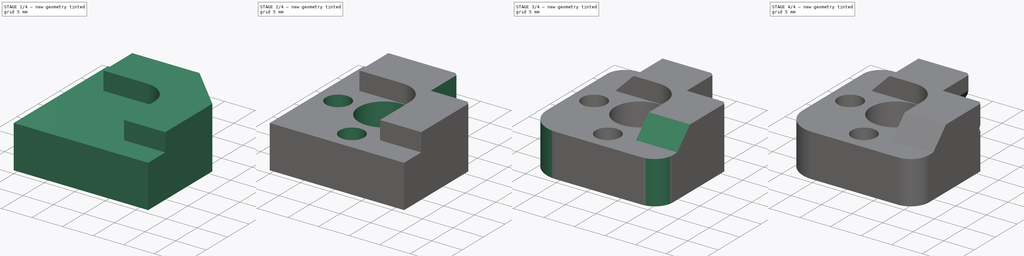
[diagram: build sequence overview — one tinted view per stage of 4, left to right]
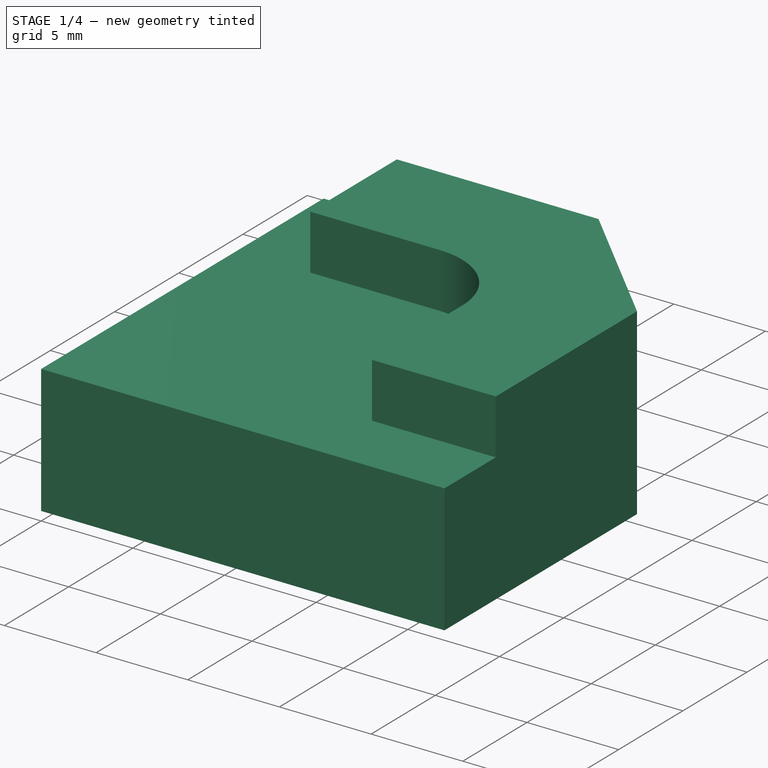
[diagram: stage 1 of 4 — iso view after this stage's code; geometry added in this stage tinted green]
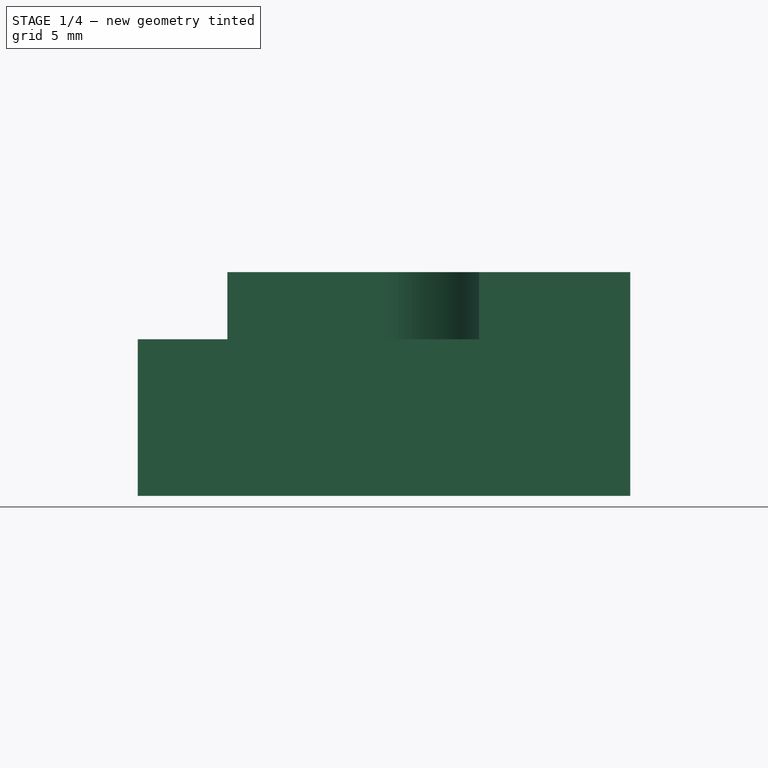
[diagram: stage 1 of 4 — front view after this stage's code; geometry added in this stage tinted green]
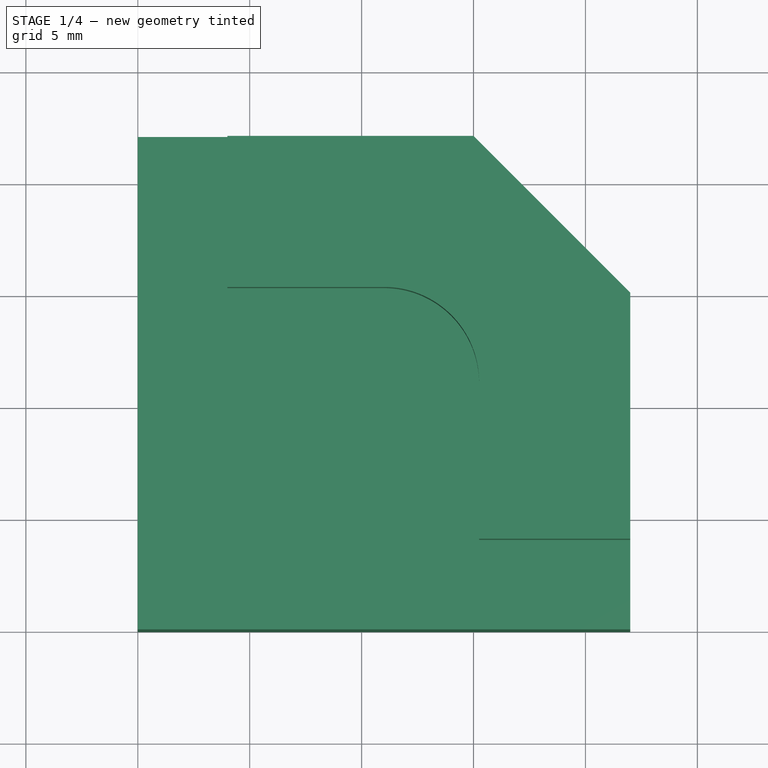
[diagram: stage 1 of 4 — top view after this stage's code; geometry added in this stage tinted green]
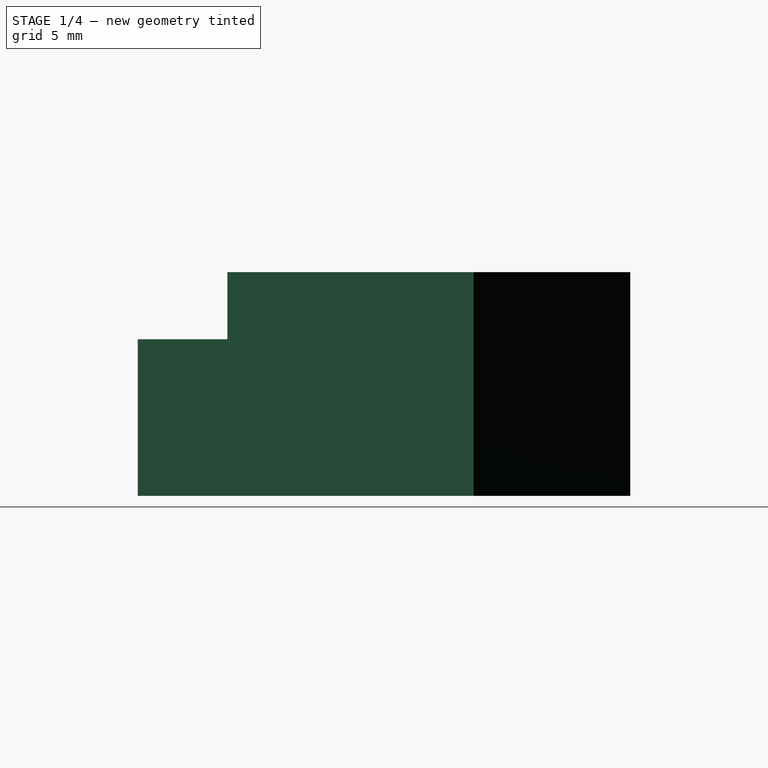
[diagram: stage 1 of 4 — right view after this stage's code; geometry added in this stage tinted green]
FCSTD DOCUMENT  (FreeCAD 0.17R13662 (Git))
Label: bed_corner_v2.2.3
License: CreativeCommons Attribution-ShareAlike
LicenseURL: http://creativecommons.org/licenses/by-sa/4.0/
objects: Sketcher::SketchObject×6, PartDesign::Pocket×5, PartDesign::Fillet×2, PartDesign::Pad×1, PartDesign::Chamfer×1, PartDesign::Body×1, Part::Feature×1
note: 23 computed .brp shape members not serialized (recipe doc carries the construction recipe); baked Part::Feature solids carry a one-line shape summary decoded from their .brp

FEATURE [Sketcher::SketchObject] Sketch
  MapMode = 5
  Support = -> [XY_Plane]
  sketch-geometry (5):
    g0: LineSegment StartX=0 StartY=22 StartZ=0 EndX=15 EndY=22 EndZ=0
    g1: LineSegment StartX=22 StartY=15 StartZ=0 EndX=22 EndY=0 EndZ=0
    g2: LineSegment StartX=22 StartY=0 StartZ=0 EndX=0 EndY=0 EndZ=0
    g3: LineSegment StartX=0 StartY=0 StartZ=0 EndX=0 EndY=22 EndZ=0
    g4: LineSegment StartX=15 StartY=22 StartZ=0 EndX=22 EndY=15 EndZ=0
  constraints (14):
    c: Coincident(g1,g2)
    c: Coincident(g2,g3)
    c: Coincident(g3,g0)
    c: Coincident(g2,g-1)
    c: Horizontal(g2)
    c: Vertical(g3)
    c: DistanceY(g3,g3) = 22
    c: Horizontal(g0)
    c: Vertical(g1)
    c: Equal(g2,g3)
    c: DistanceY(g1,g1) = 15
    c: Equal(g0,g1)
    c: Coincident(g0,g4)
    c: Coincident(g1,g4)
FEATURE [PartDesign::Pad] Pad
  Length = 10
  Length2 = 100
  Profile = -> Sketch
  Type = 0
FEATURE [Sketcher::SketchObject] Sketch002
  MapMode = 5
  Placement = pos=(0,0,10) rot=(0,0,1;0rad)
  sketch-geometry (9):
    g0: LineSegment StartX=0 StartY=22 StartZ=0 EndX=4 EndY=22 EndZ=0
    g1: LineSegment StartX=4 StartY=22 StartZ=0 EndX=4 EndY=15.25 EndZ=0
    g2: LineSegment StartX=4 StartY=15.25 StartZ=0 EndX=11 EndY=15.25 EndZ=0
    g3: LineSegment StartX=15.25 StartY=11 StartZ=0 EndX=15.25 EndY=4 EndZ=0
    g4: LineSegment StartX=15.25 StartY=4 StartZ=0 EndX=22 EndY=4 EndZ=0
    g5: LineSegment StartX=22 StartY=4 StartZ=0 EndX=22 EndY=0 EndZ=0
    g6: LineSegment StartX=22 StartY=0 StartZ=0 EndX=0 EndY=0 EndZ=0
    g7: LineSegment StartX=0 StartY=0 StartZ=0 EndX=0 EndY=22 EndZ=0
    g8: ArcOfCircle CenterX=11 CenterY=11 CenterZ=0 NormalX=0 NormalY=0 NormalZ=1 AngleXU=0 Radius=4.25 StartAngle=0 EndAngle=1.5708
  constraints (26):
    c: Coincident(g0,g1)
    c: Coincident(g1,g2)
    c: Coincident(g3,g4)
    c: Coincident(g4,g5)
    c: Coincident(g5,g6)
    c: Coincident(g6,g7)
    c: Coincident(g0,g7)
    c: Coincident(g6,g-1)
    c: Horizontal(g6)
    c: Vertical(g7)
    c: Horizontal(g0)
    c: Horizontal(g2)
    c: Horizontal(g4)
    c: Vertical(g5)
    c: Vertical(g3)
    c: Vertical(g1)
    c: Equal(g7,g6)
    c: DistanceX(g6,g6) = 22
    c: Equal(g0,g5)
    c: Equal(g3,g2)
    c: DistanceX(g0,g0) = 4
    c: DistanceY(g1,g1) = 6.75
    c: Tangent(g3,g8) = 1.5708
    c: Coincident(g2,g8)
    c: Radius(g8) = 4.25
    c: Equal(g1,g4)
FEATURE [PartDesign::Pocket] Pocket
  BaseFeature = -> Pad
  Length = 3
  Length2 = 100
  Profile = -> Sketch002
  Type = 0
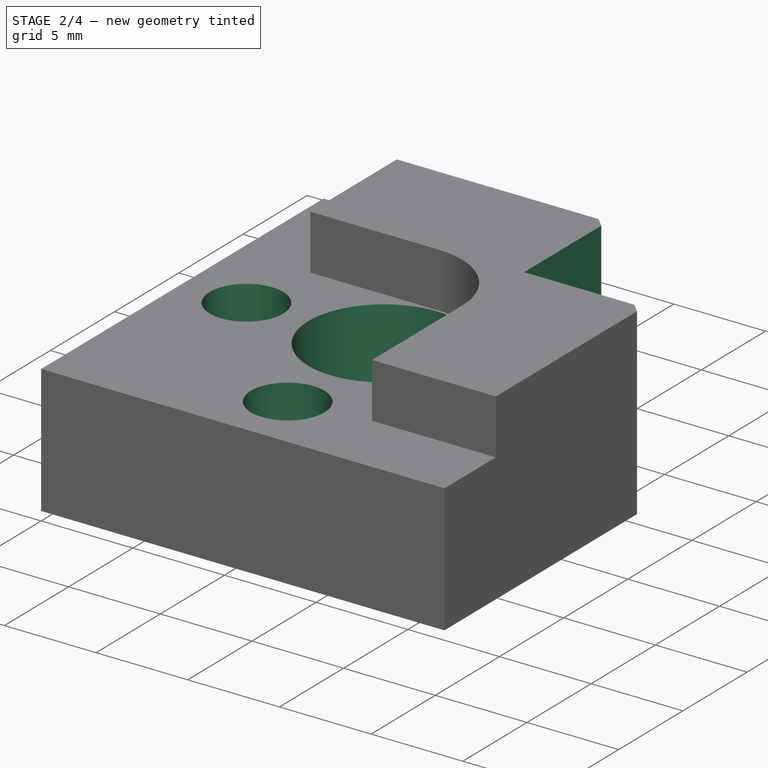
[diagram: stage 2 of 4 — iso view after this stage's code; geometry added in this stage tinted green]
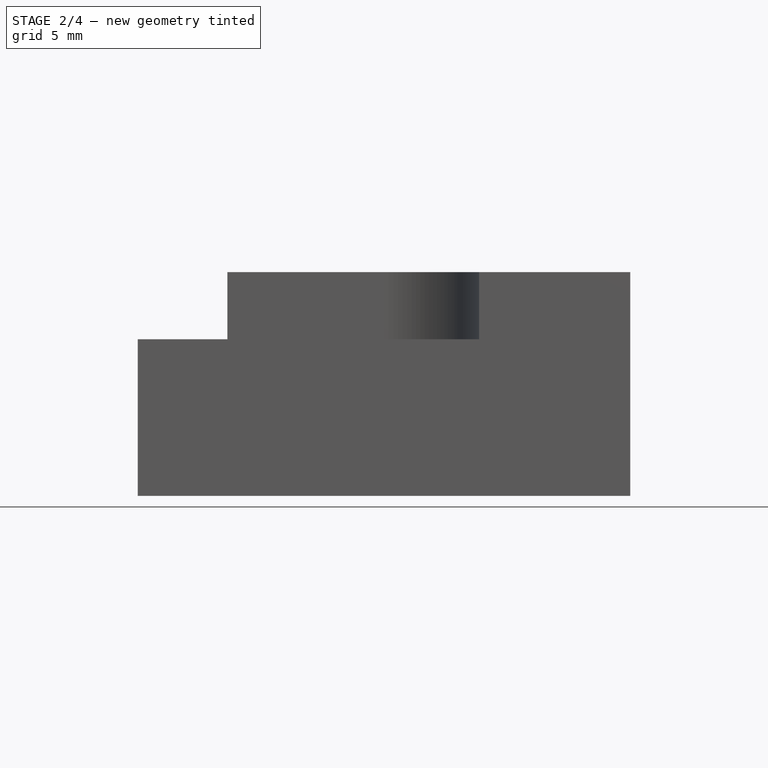
[diagram: stage 2 of 4 — front view after this stage's code; geometry added in this stage tinted green]
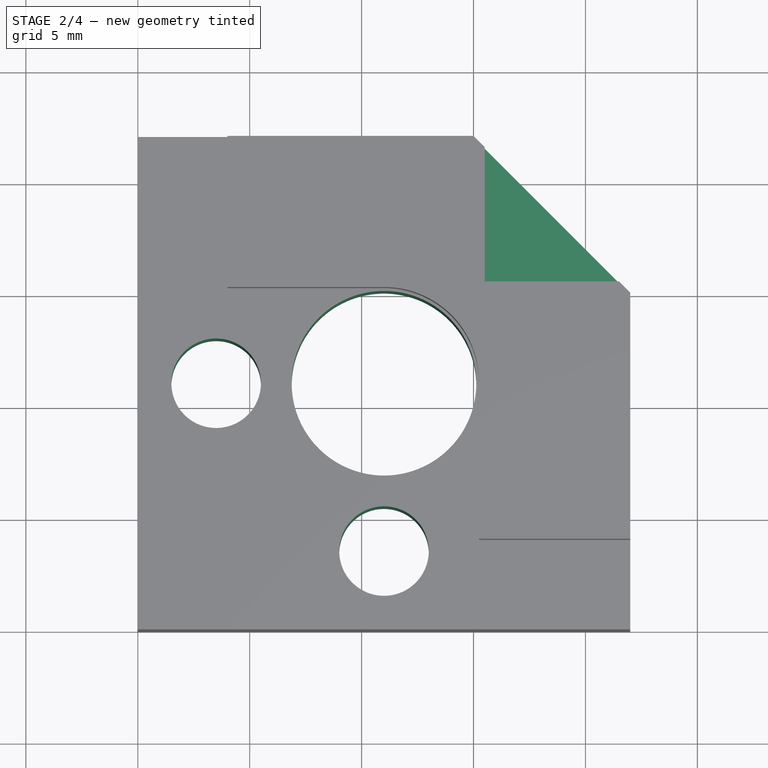
[diagram: stage 2 of 4 — top view after this stage's code; geometry added in this stage tinted green]
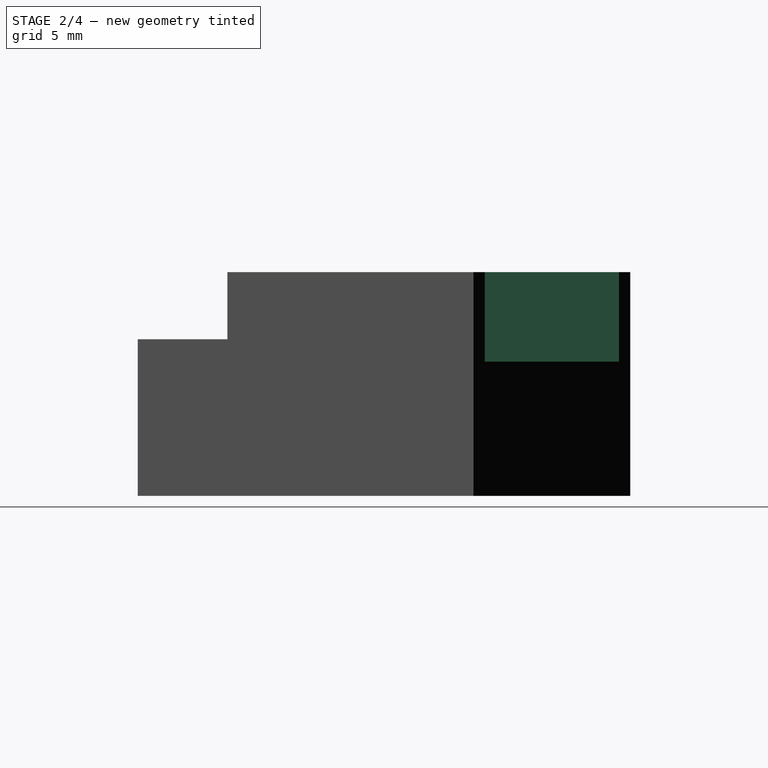
[diagram: stage 2 of 4 — right view after this stage's code; geometry added in this stage tinted green]
FEATURE [Sketcher::SketchObject] Sketch001
  MapMode = 5
  Placement = pos=(0,0,7) rot=(0,0,1;0rad)
  Support = -> [Pocket]
  sketch-geometry (7):
    g0: Circle CenterX=11 CenterY=11 CenterZ=0 NormalX=0 NormalY=0 NormalZ=1 AngleXU=0 Radius=4.125
    g1: Circle CenterX=11 CenterY=3.5 CenterZ=0 NormalX=0 NormalY=0 NormalZ=1 AngleXU=0 Radius=2
    g2: Circle CenterX=3.5 CenterY=11 CenterZ=0 NormalX=0 NormalY=0 NormalZ=1 AngleXU=0 Radius=2
    g3: LineSegment [constr] StartX=0 StartY=0 StartZ=0 EndX=11 EndY=0 EndZ=0
    g4: LineSegment [constr] StartX=11 StartY=0 StartZ=0 EndX=11 EndY=11 EndZ=0
    g5: LineSegment [constr] StartX=11 StartY=11 StartZ=0 EndX=0 EndY=11 EndZ=0
    g6: LineSegment [constr] StartX=0 StartY=11 StartZ=0 EndX=0 EndY=0 EndZ=0
  constraints (19):
    c: Coincident(g3,g4)
    c: Coincident(g4,g5)
    c: Coincident(g5,g6)
    c: Coincident(g6,g3)
    c: Horizontal(g3)
    c: Horizontal(g5)
    c: Vertical(g4)
    c: Vertical(g6)
    c: Coincident(g0,g4)
    c: Coincident(g3,g-1)
    c: Equal(g3,g6)
    c: DistanceY(g6,g6) = 11
    c: PointOnObject(g2,g5)
    c: PointOnObject(g1,g4)
    c: DistanceY(g1) = 3.5
    c: DistanceX(g2) = 3.5
    c: Radius(g2) = 2
    c: Equal(g2,g1)
    c: Radius(g0) = 4.125
FEATURE [PartDesign::Pocket] Pocket001
  BaseFeature = -> Pocket
  Length = 5
  Length2 = 100
  Profile = -> Sketch001
  Type = 1
FEATURE [Sketcher::SketchObject] Sketch003
  MapMode = 5
  Placement = pos=(0,0,10) rot=(0,0,1;0rad)
  Support = -> [Pocket001]
  sketch-geometry (4):
    g0: LineSegment StartX=15.5 StartY=22 StartZ=0 EndX=22 EndY=22 EndZ=0
    g1: LineSegment StartX=22 StartY=22 StartZ=0 EndX=22 EndY=15.5 EndZ=0
    g2: LineSegment StartX=22 StartY=15.5 StartZ=0 EndX=15.5 EndY=15.5 EndZ=0
    g3: LineSegment StartX=15.5 StartY=15.5 StartZ=0 EndX=15.5 EndY=22 EndZ=0
  constraints (12):
    c: Coincident(g0,g1)
    c: Coincident(g1,g2)
    c: Coincident(g2,g3)
    c: Coincident(g3,g0)
    c: Horizontal(g0)
    c: Horizontal(g2)
    c: Vertical(g1)
    c: Vertical(g3)
    c: DistanceX(g0) = 15.5
    c: DistanceY(g0) = 22
    c: Equal(g3,g2)
    c: DistanceX(g2,g2) = 6.5
FEATURE [PartDesign::Pocket] Pocket002
  BaseFeature = -> Pocket001
  Length = 4
  Length2 = 100
  Profile = -> Sketch003
  Type = 0
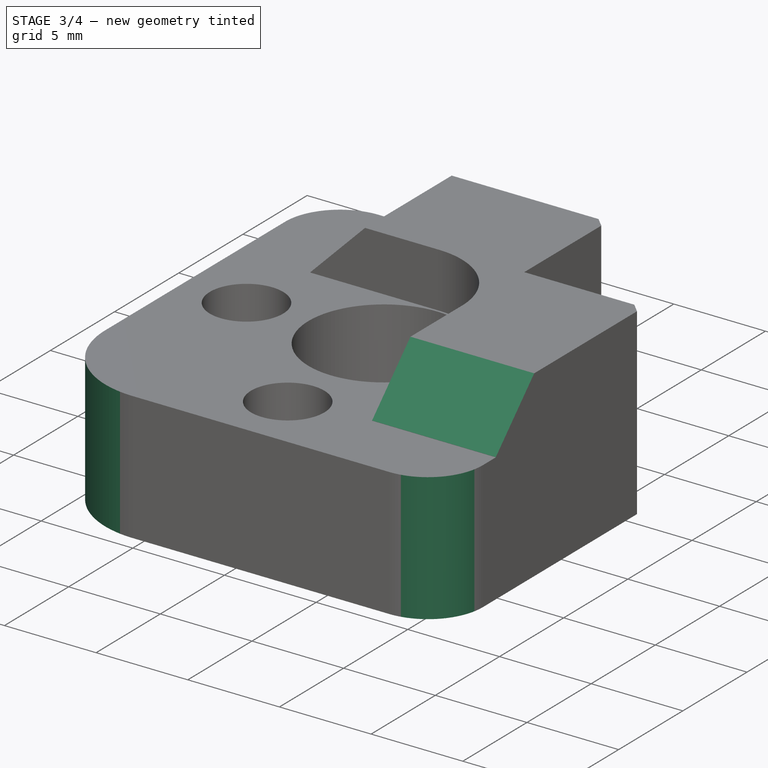
[diagram: stage 3 of 4 — iso view after this stage's code; geometry added in this stage tinted green]
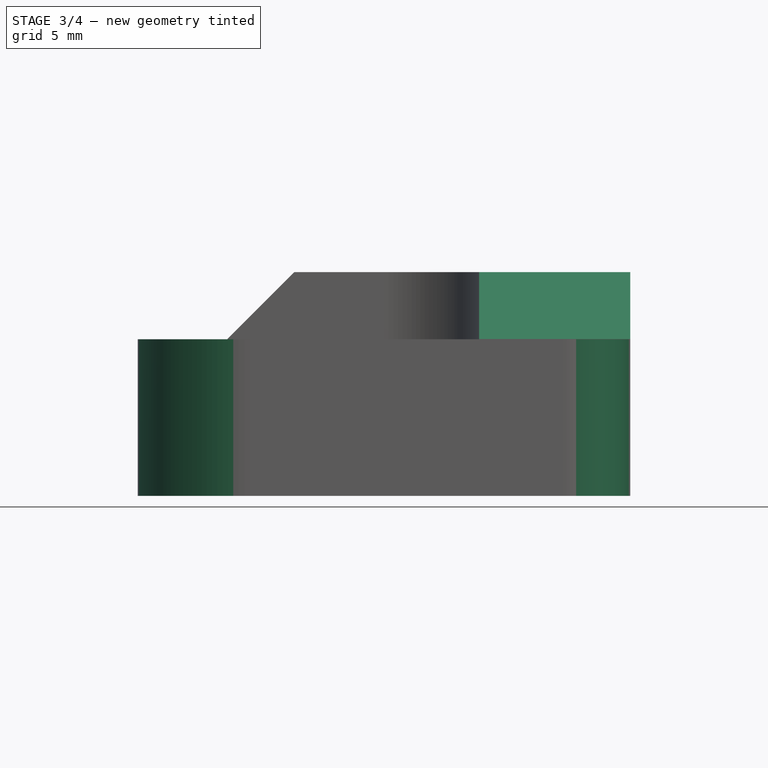
[diagram: stage 3 of 4 — front view after this stage's code; geometry added in this stage tinted green]
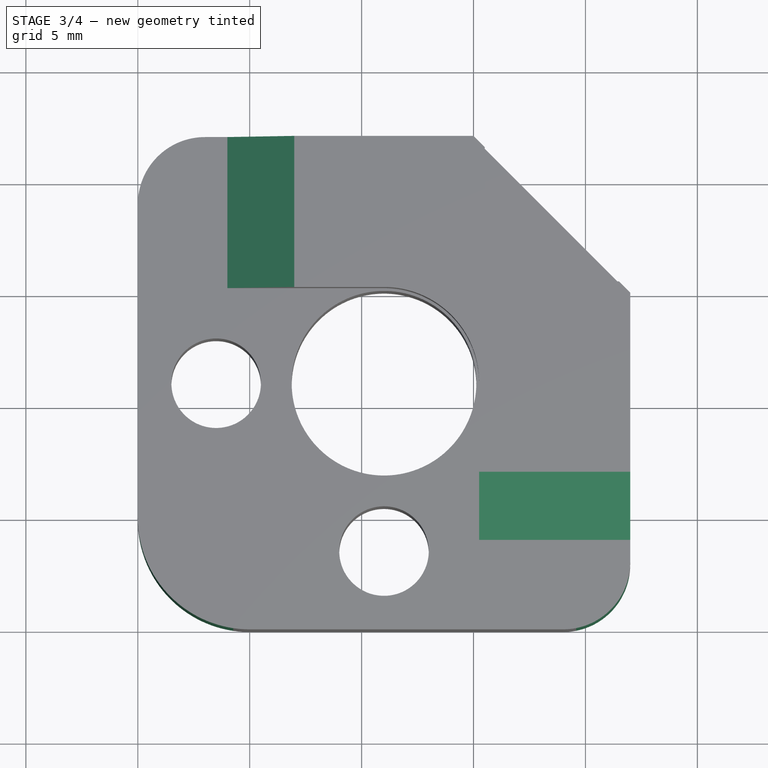
[diagram: stage 3 of 4 — top view after this stage's code; geometry added in this stage tinted green]
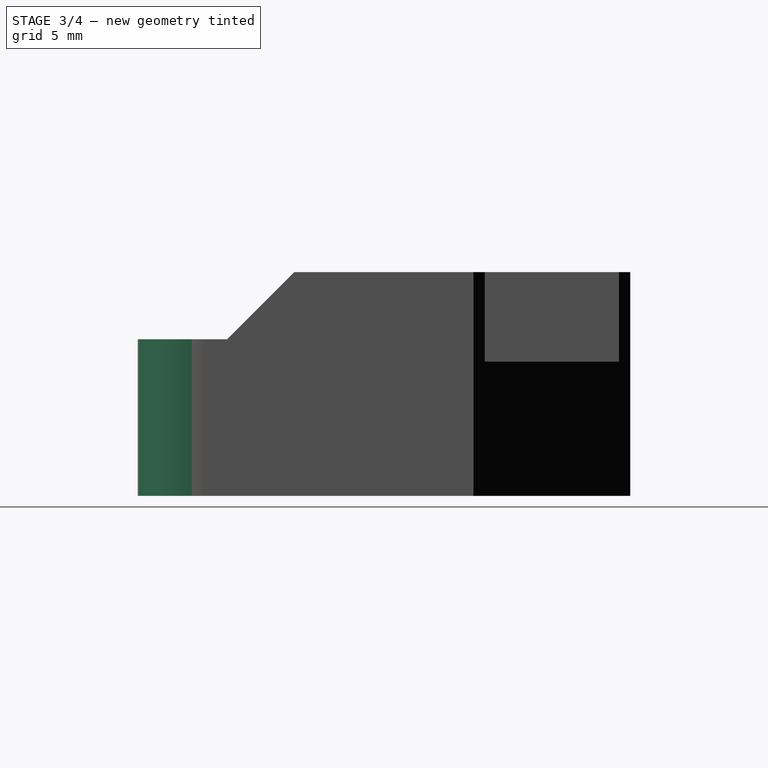
[diagram: stage 3 of 4 — right view after this stage's code; geometry added in this stage tinted green]
FEATURE [PartDesign::Fillet] Fillet
  Base = -> Pocket002 [Edge40]
  BaseFeature = -> Pocket002
  Radius = 5
FEATURE [PartDesign::Fillet] Fillet001
  Base = -> Fillet [Edge19,Edge11]
  BaseFeature = -> Fillet
  Radius = 3
FEATURE [PartDesign::Chamfer] Chamfer
  Base = -> Fillet001 [Edge47,Edge51]
  BaseFeature = -> Fillet001
  Size = 2.99
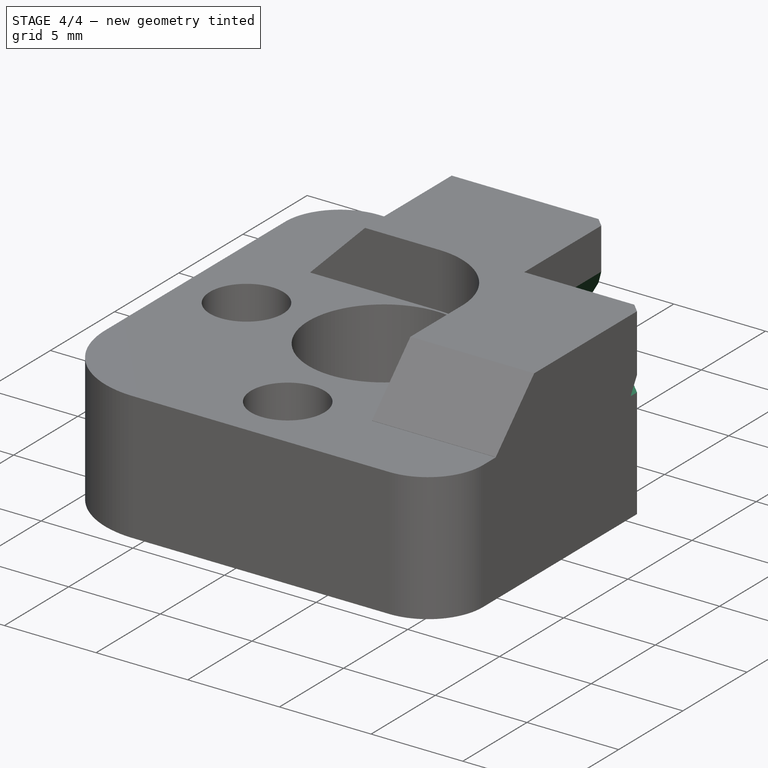
[diagram: stage 4 of 4 — iso view after this stage's code; geometry added in this stage tinted green]
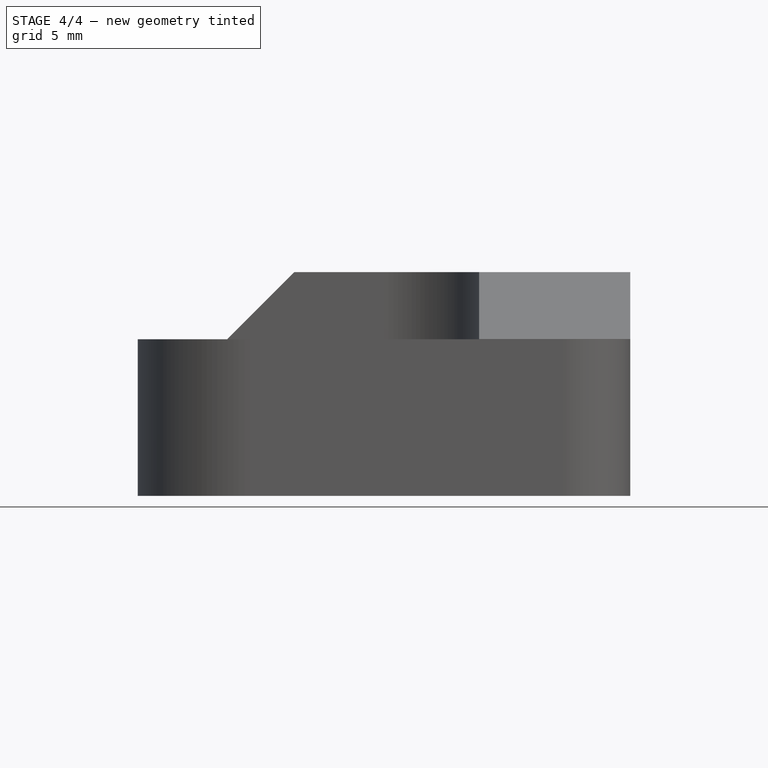
[diagram: stage 4 of 4 — front view after this stage's code; geometry added in this stage tinted green]
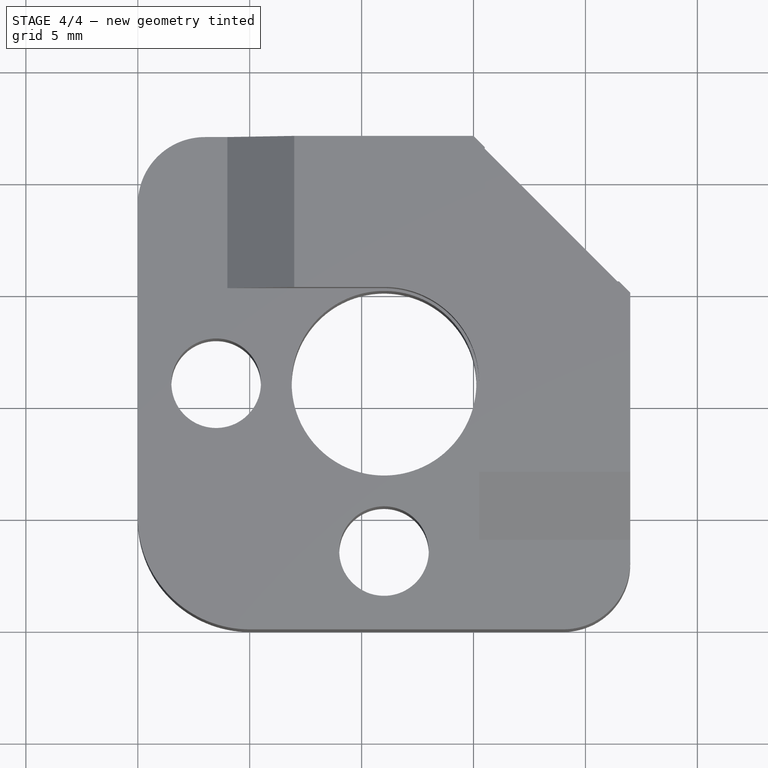
[diagram: stage 4 of 4 — top view after this stage's code; geometry added in this stage tinted green]
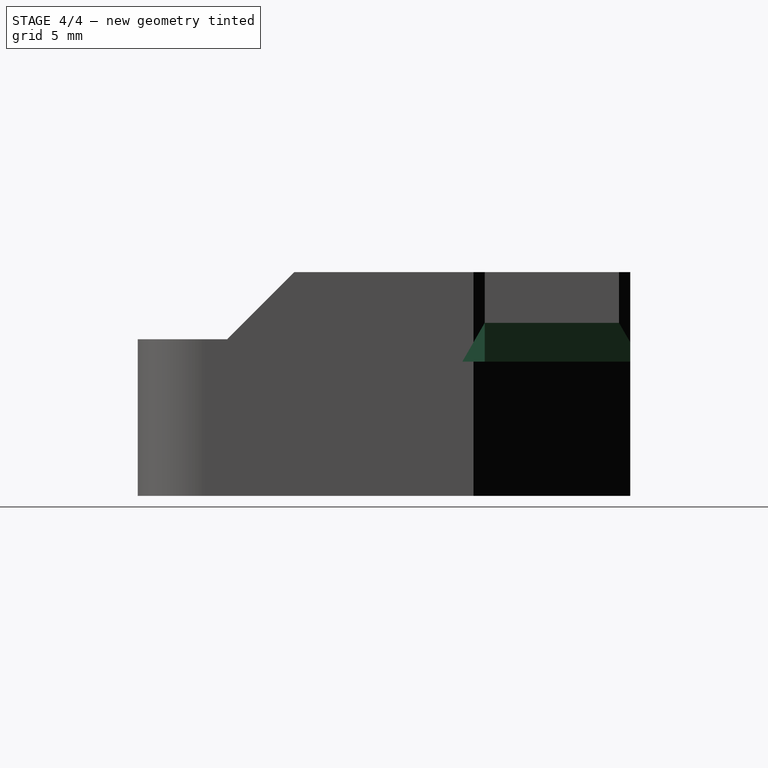
[diagram: stage 4 of 4 — right view after this stage's code; geometry added in this stage tinted green]
FEATURE [Sketcher::SketchObject] Sketch004
  ExternalGeometry = -> [Chamfer]
  MapMode = 5
  Placement = pos=(0,22,0) rot=(0,0.707107,0.707107;3.14159rad)
  Support = -> [Chamfer]
  sketch-geometry (3):
    g0: LineSegment StartX=-15.5 StartY=7.73205 StartZ=0 EndX=-14.5 EndY=6 EndZ=0
    g1: LineSegment StartX=-14.5 StartY=6 StartZ=0 EndX=-15.5 EndY=6 EndZ=0
    g2: LineSegment StartX=-15.5 StartY=6 StartZ=0 EndX=-15.5 EndY=7.73205 EndZ=0
  constraints (9):
    c: Coincident(g0,g1)
    c: Horizontal(g1)
    c: Coincident(g1,g2)
    c: Coincident(g2,g0)
    c: Vertical(g2)
    c: PointOnObject(g1,g-3)
    c: DistanceX(g-4,g0) = 1
    c: Angle(g2,g0) = 0.523599
    c: Coincident(g1,g-4)
FEATURE [PartDesign::Pocket] Pocket003
  BaseFeature = -> Chamfer
  Length = 7.5
  Length2 = 100
  Profile = -> Sketch004
  Type = 0
FEATURE [Sketcher::SketchObject] Sketch005
  ExternalGeometry = -> [Pocket003]
  MapMode = 5
  Placement = pos=(22,0,0) rot=(0.57735,0.57735,0.57735;2.0944rad)
  Support = -> [Pocket003]
  sketch-geometry (3):
    g0: LineSegment StartX=15.5 StartY=6 StartZ=0 EndX=15.5 EndY=7.73205 EndZ=0
    g1: LineSegment StartX=15.5 StartY=7.73205 StartZ=0 EndX=14.5 EndY=6 EndZ=0
    g2: LineSegment StartX=14.5 StartY=6 StartZ=0 EndX=15.5 EndY=6 EndZ=0
  constraints (8):
    c: Coincident(g-4,g0)
    c: PointOnObject(g0,g-3)
    c: Coincident(g0,g1)
    c: Coincident(g1,g2)
    c: Coincident(g2,g0)
    c: Horizontal(g2)
    c: Angle(g1,g0) = 0.523599
    c: DistanceX(g2,g2) = 1
FEATURE [PartDesign::Pocket] Pocket004
  BaseFeature = -> Pocket003
  Length = 7.5
  Length2 = 100
  Profile = -> Sketch005
  Type = 0
FEATURE [PartDesign::Body] Body
  Group = -> [Sketch,Pad,Sketch001,Sketch002,Pocket,Pocket001,Sketch003,Pocket002,Fillet,Fillet001,Chamfer,Sketch004,Pocket003,Sketch005,Pocket004]
  Origin = -> Origin
  Tip = -> Pocket004
FEATURE [Part::Feature] Pocket004001  label="Pocket005"
  shape: bbox 22 x 22 x 10 mm, 34 faces (baked)
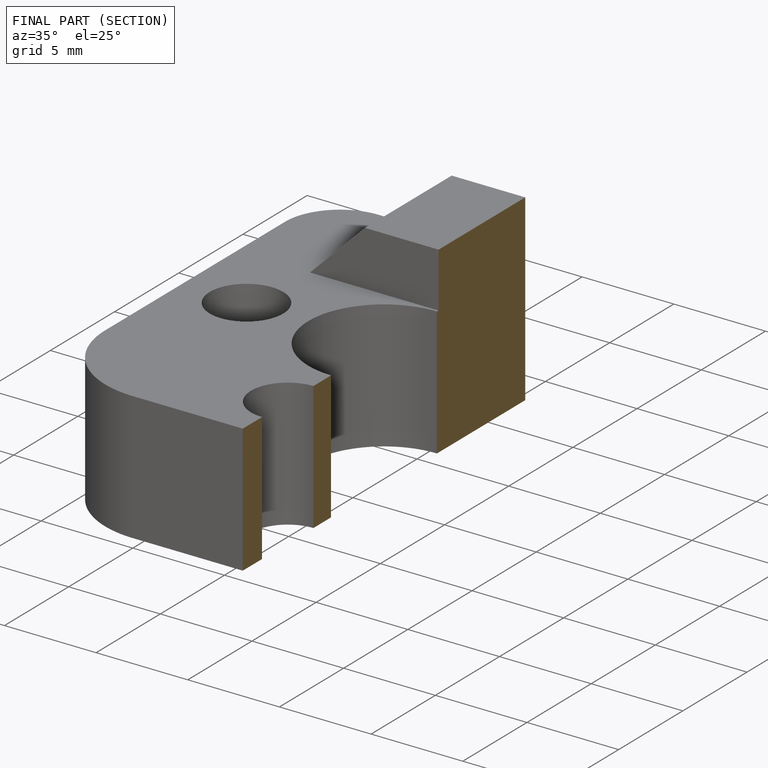
[diagram: finished part — half-section view (interior)]
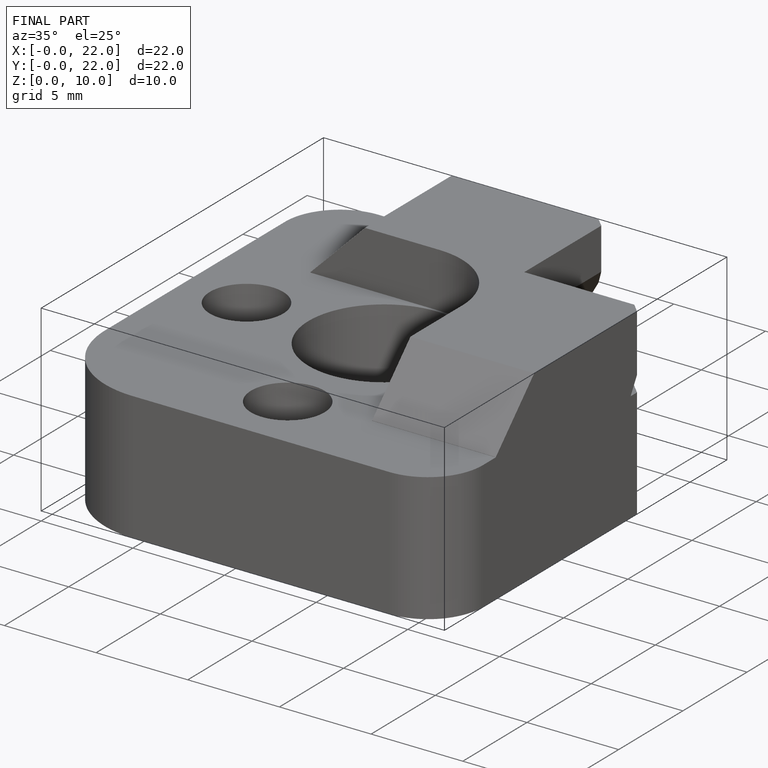
[diagram: finished part — iso view with bounding-box wireframe]
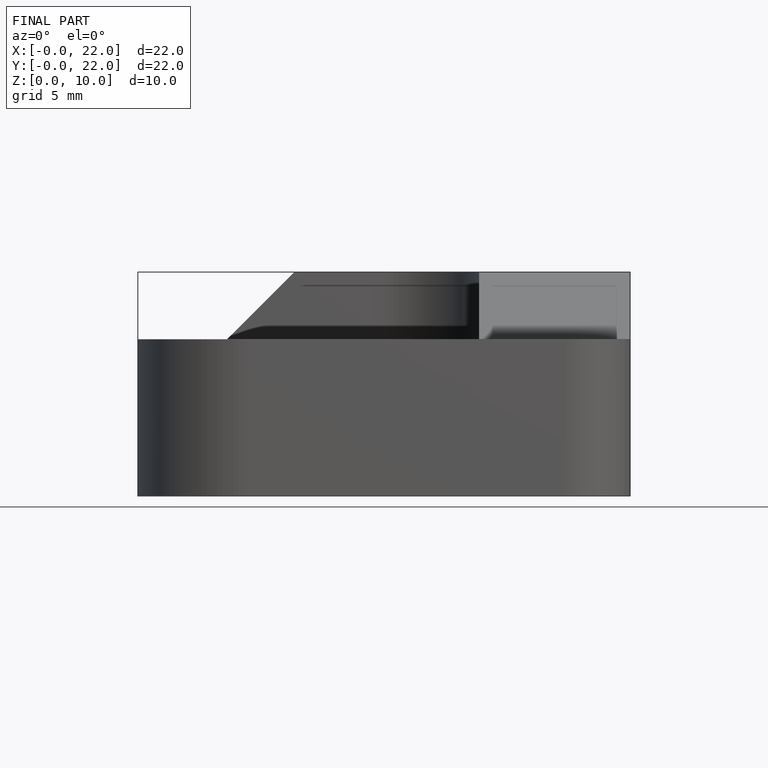
[diagram: finished part — front view with bounding-box wireframe]
